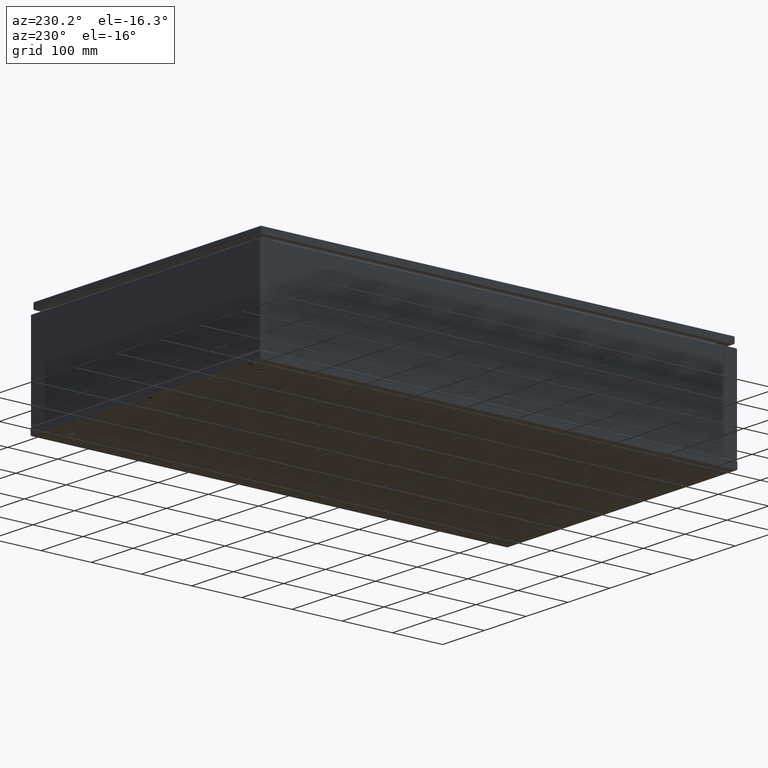
[diagram: clean part render]
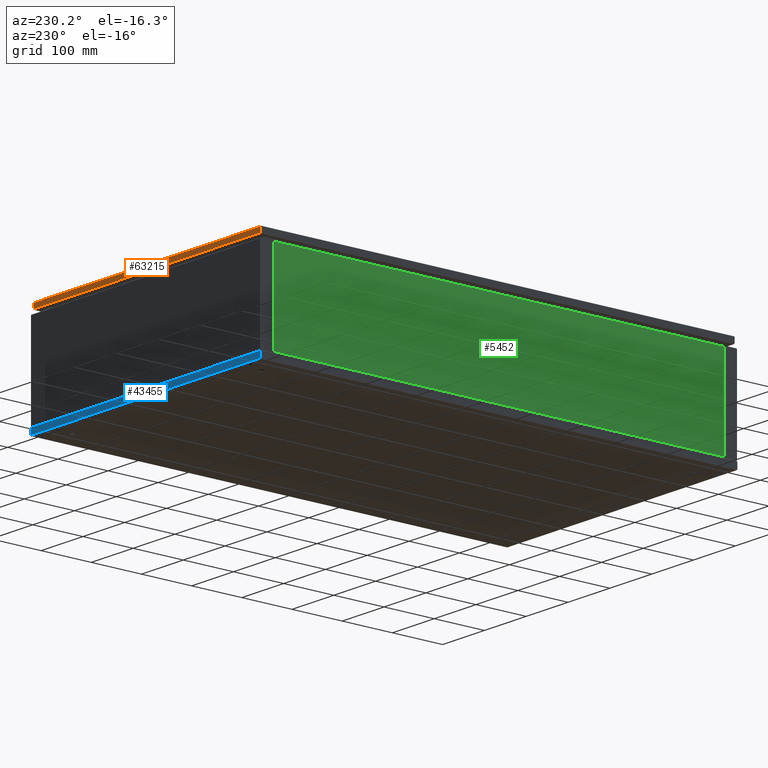
[diagram: same view with three faces highlighted in distinct colors, each labeled with its STEP entity id]
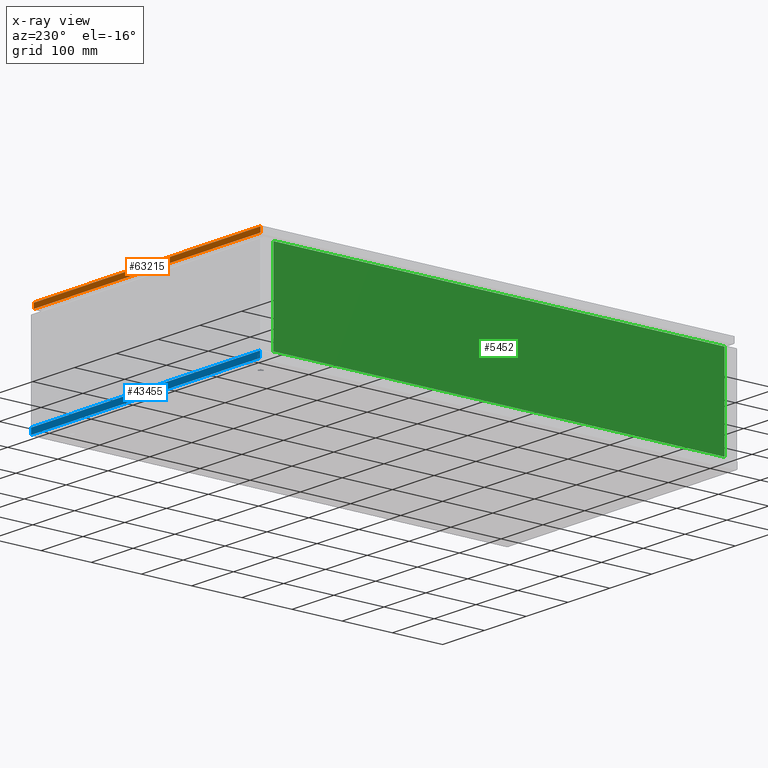
[diagram: x-ray of the same camera — body ghosted, the three highlighted faces saturated]
A machine part, auxiliary view with three faces highlighted in distinct colors.
The next image is the same camera in x-ray (body ghosted, the three faces saturated) — at least one of them is partly hidden behind the body in this view.
Their STEP definitions:

[orange] entity #63215 — the highlighted planar face has unit normal (-0, -1, -0).
#3408 = DIRECTION ( 'NONE',  ( -1.000000000000000000, 7.438982840440291200E-015, 1.210143096841420200E-014 ) ) ;
#5541 = CARTESIAN_POINT ( 'NONE',  ( 270.6464466093184500, 471.8999999999870200, 201.6000000000059900 ) ) ;
#5880 = DIRECTION ( 'NONE',  ( -6.723788192886050700E-015, 1.353942466577502100E-014, -1.000000000000000000 ) ) ;
#24269 = VERTEX_POINT ( 'NONE', #33572 ) ;
#24530 = DIRECTION ( 'NONE',  ( -1.204262678278774000E-014, 1.348062048014870200E-014, -1.000000000000000000 ) ) ;
#26410 = ORIENTED_EDGE ( 'NONE', *, *, #64322, .F. ) ;
#29336 = LINE ( 'NONE', #35094, #83668 ) ;
#30991 = PLANE ( 'NONE',  #56674 ) ;
#32037 = CARTESIAN_POINT ( 'NONE',  ( -270.9000000000889400, 471.8999999999910000, 211.6000000000125000 ) ) ;
#33572 = CARTESIAN_POINT ( 'NONE',  ( 270.8999999999114700, 471.8999999999870200, 211.6000000000059900 ) ) ;
#35094 = CARTESIAN_POINT ( 'NONE',  ( 270.8999999999114700, 471.8999999999870200, 211.6000000000059900 ) ) ;
#36746 = EDGE_CURVE ( 'NONE', #24269, #77456, #65652, .T. ) ;
#38817 = CARTESIAN_POINT ( 'NONE',  ( -8.852628884073760500E-011, 471.8999999999890100, 212.1000000000115100 ) ) ;
#45419 = ORIENTED_EDGE ( 'NONE', *, *, #98684, .T. ) ;
#46976 = DIRECTION ( 'NONE',  ( -7.438982840440411100E-015, -1.000000000000000000, -1.055460502763801100E-014 ) ) ;
#49103 = LINE ( 'NONE', #5541, #70750 ) ;
#51181 = VERTEX_POINT ( 'NONE', #92604 ) ;
#55769 = LINE ( 'NONE', #32037, #58150 ) ;
#56674 = AXIS2_PLACEMENT_3D ( 'NONE', #38817, #46976, #92810 ) ;
#58150 = VECTOR ( 'NONE', #24530, 1000.000000000000000 ) ;
#63215 = ADVANCED_FACE ( 'NONE', ( #65603 ), #30991, .F. ) ;
#64322 = EDGE_CURVE ( 'NONE', #77456, #51181, #55769, .T. ) ;
#65603 = FACE_OUTER_BOUND ( 'NONE', #84462, .T. ) ;
#65652 = LINE ( 'NONE', #87364, #81306 ) ;
#70750 = VECTOR ( 'NONE', #82662, 1000.000000000000000 ) ;
#77341 = VERTEX_POINT ( 'NONE', #85190 ) ;
#77456 = VERTEX_POINT ( 'NONE', #80401 ) ;
#80401 = CARTESIAN_POINT ( 'NONE',  ( -270.9000000000889400, 471.8999999999910000, 211.6000000000125000 ) ) ;
#81306 = VECTOR ( 'NONE', #3408, 1000.000000000000000 ) ;
#82662 = DIRECTION ( 'NONE',  ( -1.000000000000000000, 7.438982840440291200E-015, 1.210143096841420200E-014 ) ) ;
#83668 = VECTOR ( 'NONE', #5880, 1000.000000000000000 ) ;
#84114 = ORIENTED_EDGE ( 'NONE', *, *, #95144, .T. ) ;
#84404 = ORIENTED_EDGE ( 'NONE', *, *, #36746, .F. ) ;
#84462 = EDGE_LOOP ( 'NONE', ( #84114, #26410, #84404, #45419 ) ) ;
#85190 = CARTESIAN_POINT ( 'NONE',  ( 270.8999999999114700, 471.8999999999870200, 201.6000000000059900 ) ) ;
#87364 = CARTESIAN_POINT ( 'NONE',  ( -272.0000000000885100, 471.8999999999910000, 211.6000000000125000 ) ) ;
#92604 = CARTESIAN_POINT ( 'NONE',  ( -270.9000000000889400, 471.8999999999910000, 201.6000000000125000 ) ) ;
#92810 = DIRECTION ( 'NONE',  ( 1.210143096841412100E-014, -1.055460502763810100E-014, 1.000000000000000000 ) ) ;
#95144 = EDGE_CURVE ( 'NONE', #77341, #51181, #49103, .T. ) ;
#98684 = EDGE_CURVE ( 'NONE', #24269, #77341, #29336, .T. ) ;

[blue] entity #43455 — the highlighted planar face has unit normal (0, -1, 0).
#2674 = CARTESIAN_POINT ( 'NONE',  ( 273.8999999999999800, 475.0000000000000000, 12.49999999999971900 ) ) ;
#5131 = ORIENTED_EDGE ( 'NONE', *, *, #15060, .T. ) ;
#8512 = CARTESIAN_POINT ( 'NONE',  ( 273.8999999999999800, 475.0000000000000000, 0.4999999999997230000 ) ) ;
#8840 = DIRECTION ( 'NONE',  ( 9.143438321294380800E-015, 5.877242781239360000E-015, 1.000000000000000000 ) ) ;
#8888 = VERTEX_POINT ( 'NONE', #81583 ) ;
#9734 = ORIENTED_EDGE ( 'NONE', *, *, #97413, .T. ) ;
#9924 = CARTESIAN_POINT ( 'NONE',  ( -273.2928932188140200, 475.0000000000000000, 12.49999999999979900 ) ) ;
#15060 = EDGE_CURVE ( 'NONE', #36285, #15951, #16390, .T. ) ;
#15951 = VERTEX_POINT ( 'NONE', #43203 ) ;
#16072 = FACE_OUTER_BOUND ( 'NONE', #59067, .T. ) ;
#16390 = LINE ( 'NONE', #20282, #90100 ) ;
#20282 = CARTESIAN_POINT ( 'NONE',  ( -273.8999999999999800, 475.0000000000000000, 0.4999999999998889800 ) ) ;
#21216 = DIRECTION ( 'NONE',  ( 2.168404344971025100E-016, -3.965082230804135300E-015, -1.000000000000000000 ) ) ;
#22132 = DIRECTION ( 'NONE',  ( 1.000000000000000000, 2.168404344971005200E-016, 1.159110686220869900E-016 ) ) ;
#25637 = AXIS2_PLACEMENT_3D ( 'NONE', #60172, #97627, #21216 ) ;
#25911 = LINE ( 'NONE', #9924, #85240 ) ;
#28682 = PLANE ( 'NONE',  #25637 ) ;
#29867 = LINE ( 'NONE', #98883, #39657 ) ;
#32657 = ORIENTED_EDGE ( 'NONE', *, *, #57085, .F. ) ;
#33383 = EDGE_CURVE ( 'NONE', #36285, #8888, #29867, .T. ) ;
#36285 = VERTEX_POINT ( 'NONE', #65186 ) ;
#39657 = VECTOR ( 'NONE', #22132, 1000.000000000000000 ) ;
#43203 = CARTESIAN_POINT ( 'NONE',  ( -273.8999999999999800, 475.0000000000000000, 12.49999999999971900 ) ) ;
#43455 = ADVANCED_FACE ( 'NONE', ( #16072 ), #28682, .F. ) ;
#50875 = DIRECTION ( 'NONE',  ( -7.709248079090940100E-017, 5.818809990469580100E-015, 1.000000000000000000 ) ) ;
#57085 = EDGE_CURVE ( 'NONE', #8888, #99500, #57697, .T. ) ;
#57697 = LINE ( 'NONE', #8512, #68520 ) ;
#59067 = EDGE_LOOP ( 'NONE', ( #9734, #32657, #75164, #5131 ) ) ;
#60172 = CARTESIAN_POINT ( 'NONE',  ( -5.551115123125779500E-014, 475.0000000000000000, -2.164934898019055300E-012 ) ) ;
#63135 = DIRECTION ( 'NONE',  ( 1.000000000000000000, 2.168404344971010100E-016, 2.168404344971015000E-016 ) ) ;
#65186 = CARTESIAN_POINT ( 'NONE',  ( -273.8999999999999800, 475.0000000000000000, 0.4999999999998889800 ) ) ;
#68520 = VECTOR ( 'NONE', #8840, 1000.000000000000000 ) ;
#75164 = ORIENTED_EDGE ( 'NONE', *, *, #33383, .F. ) ;
#81583 = CARTESIAN_POINT ( 'NONE',  ( 273.8999999999999800, 475.0000000000000000, 0.4999999999996119800 ) ) ;
#85240 = VECTOR ( 'NONE', #63135, 1000.000000000000000 ) ;
#90100 = VECTOR ( 'NONE', #50875, 1000.000000000000000 ) ;
#97413 = EDGE_CURVE ( 'NONE', #15951, #99500, #25911, .T. ) ;
#97627 = DIRECTION ( 'NONE',  ( 2.168404344970994800E-016, -1.000000000000000000, 3.965082230804135300E-015 ) ) ;
#98883 = CARTESIAN_POINT ( 'NONE',  ( 275.0000000000000000, 475.0000000000000000, 0.4999999999997779600 ) ) ;
#99500 = VERTEX_POINT ( 'NONE', #2674 ) ;

[green] entity #5452 — the highlighted planar face has unit normal (-1, 0, -0).
#3867 = AXIS2_PLACEMENT_3D ( 'NONE', #34212, #88229, #4002 ) ;
#4002 = DIRECTION ( 'NONE',  ( -4.069444434207095500E-015, -1.000000000000000000, -1.097230627820818000E-016 ) ) ;
#5238 = DIRECTION ( 'NONE',  ( -1.110358288611104200E-014, -9.601861726062598400E-017, 1.000000000000000000 ) ) ;
#5452 = ADVANCED_FACE ( 'NONE', ( #99260 ), #80469, .T. ) ;
#5579 = CARTESIAN_POINT ( 'NONE',  ( -275.0000000000040400, -450.7500000000000000, 15.49999999999670100 ) ) ;
#10367 = DIRECTION ( 'NONE',  ( -4.069444434207095500E-015, -1.000000000000000000, -1.097230627820818000E-016 ) ) ;
#11370 = CARTESIAN_POINT ( 'NONE',  ( -275.0000000000060300, -450.7500000000000000, 191.4999999999965000 ) ) ;
#11732 = LINE ( 'NONE', #11370, #61398 ) ;
#17475 = LINE ( 'NONE', #36088, #61122 ) ;
#20055 = EDGE_CURVE ( 'NONE', #70079, #81416, #82162, .T. ) ;
#21049 = ORIENTED_EDGE ( 'NONE', *, *, #61299, .T. ) ;
#25372 = CARTESIAN_POINT ( 'NONE',  ( -275.0000000000060300, -449.2500000000000000, 191.4999999999965000 ) ) ;
#33136 = EDGE_CURVE ( 'NONE', #70079, #82415, #11732, .T. ) ;
#34212 = CARTESIAN_POINT ( 'NONE',  ( -275.0000000000040400, -450.7500000000000000, 15.49999999999670100 ) ) ;
#36088 = CARTESIAN_POINT ( 'NONE',  ( -275.0000000000040400, -449.2500000000000000, 15.49999999999670100 ) ) ;
#36260 = ORIENTED_EDGE ( 'NONE', *, *, #20055, .T. ) ;
#36355 = CARTESIAN_POINT ( 'NONE',  ( -275.0000000000000000, 449.2500000000000000, 191.4999999999970200 ) ) ;
#37132 = VECTOR ( 'NONE', #72593, 1000.000000000000000 ) ;
#38909 = CARTESIAN_POINT ( 'NONE',  ( -275.0000000000000000, 449.2500000000000000, 191.4999999999970200 ) ) ;
#47507 = CARTESIAN_POINT ( 'NONE',  ( -275.0000000000000000, 449.2500000000000000, 15.49999999999680100 ) ) ;
#59139 = VERTEX_POINT ( 'NONE', #89059 ) ;
#61122 = VECTOR ( 'NONE', #5238, 1000.000000000000000 ) ;
#61299 = EDGE_CURVE ( 'NONE', #59139, #82415, #17475, .T. ) ;
#61398 = VECTOR ( 'NONE', #10367, 1000.000000000000000 ) ;
#61884 = EDGE_LOOP ( 'NONE', ( #76511, #36260, #80600, #21049 ) ) ;
#69645 = DIRECTION ( 'NONE',  ( 1.110358288611104200E-014, 9.601861726062598400E-017, -1.000000000000000000 ) ) ;
#70079 = VERTEX_POINT ( 'NONE', #36355 ) ;
#72593 = DIRECTION ( 'NONE',  ( 4.069444434207095500E-015, 1.000000000000000000, 1.097230627820818000E-016 ) ) ;
#75966 = EDGE_CURVE ( 'NONE', #59139, #81416, #91461, .T. ) ;
#76511 = ORIENTED_EDGE ( 'NONE', *, *, #33136, .F. ) ;
#80469 = PLANE ( 'NONE',  #3867 ) ;
#80600 = ORIENTED_EDGE ( 'NONE', *, *, #75966, .F. ) ;
#81416 = VERTEX_POINT ( 'NONE', #47507 ) ;
#82162 = LINE ( 'NONE', #38909, #95407 ) ;
#82415 = VERTEX_POINT ( 'NONE', #25372 ) ;
#88229 = DIRECTION ( 'NONE',  ( -1.000000000000000000, 4.069444434207097100E-015, -1.109674472525750100E-014 ) ) ;
#89059 = CARTESIAN_POINT ( 'NONE',  ( -275.0000000000040400, -449.2500000000000000, 15.49999999999670100 ) ) ;
#91461 = LINE ( 'NONE', #5579, #37132 ) ;
#95407 = VECTOR ( 'NONE', #69645, 1000.000000000000000 ) ;
#99260 = FACE_OUTER_BOUND ( 'NONE', #61884, .T. ) ;